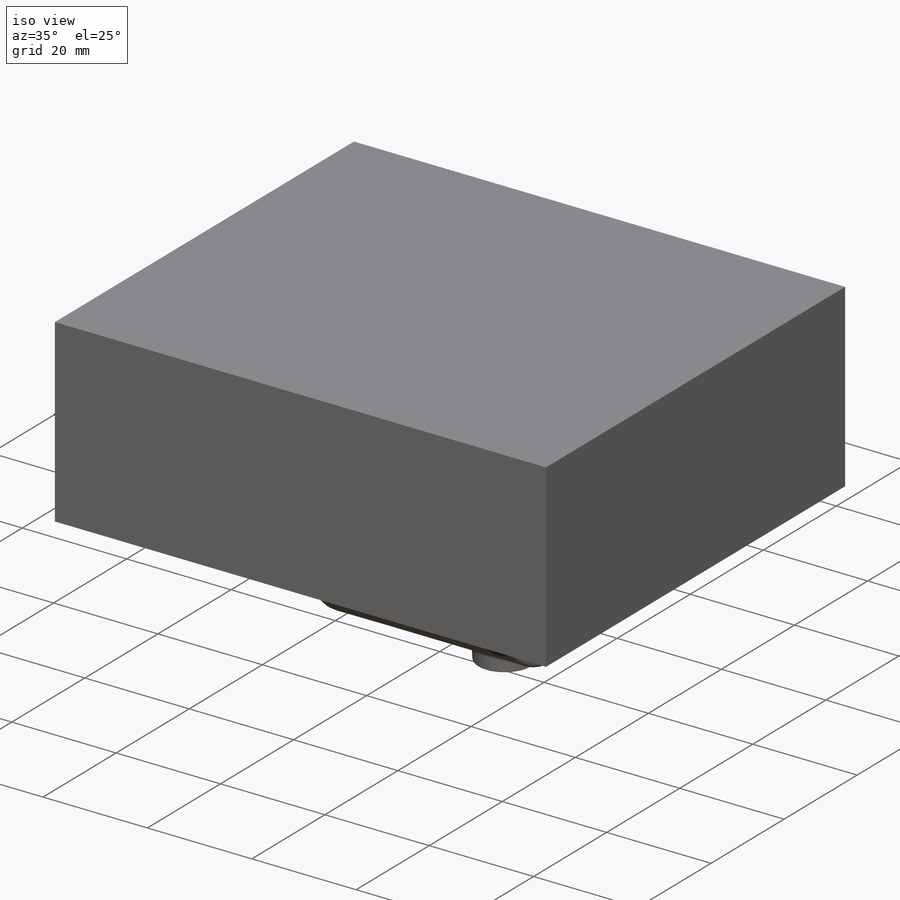
[diagram: iso view]
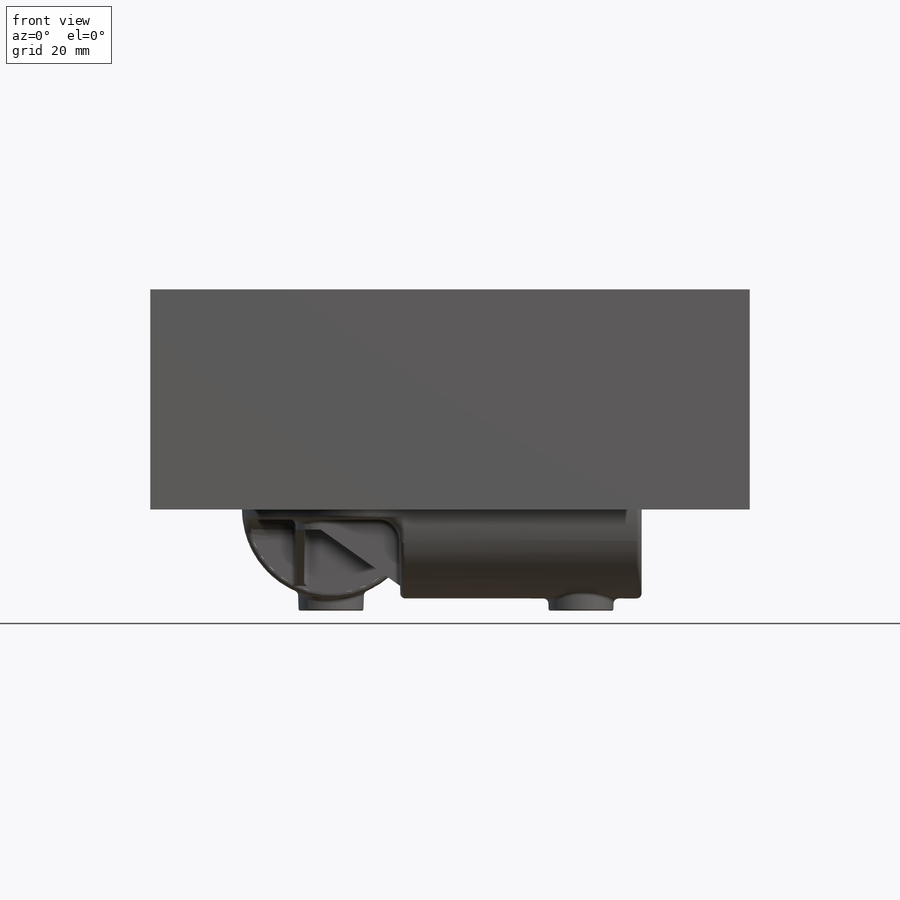
[diagram: front view]
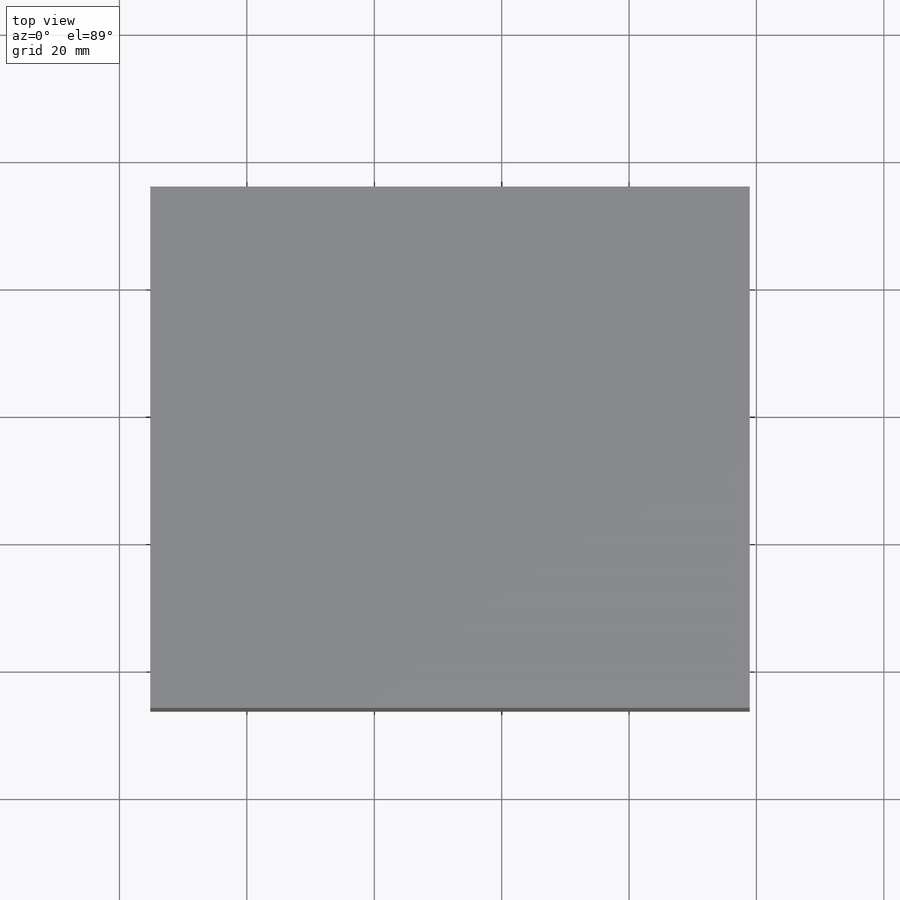
[diagram: top view]
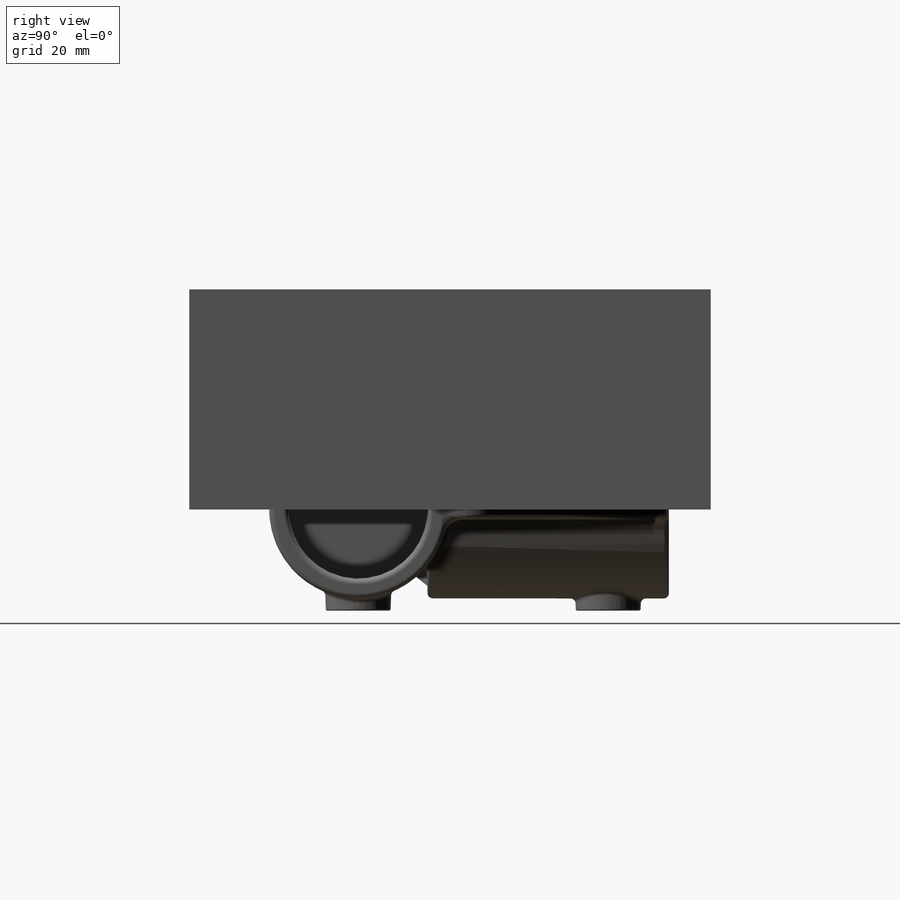
[diagram: right view]
SOLIDWORKS PART (.sldprt)
format: sldprt  version: not decoded by parser v0  size: 4,369,408 bytes
history: native  units: mm
features: sketch x25, cut_extrude x13, extrude x9, fillet x8, sweep x6, plane x4, boolean_combine x2, material x1, mirror x1, move_body x1 (+12 scaffold rows collapsed)
feature tree (82):
  scaffold x12  (default folders/planes/origin — collapsed)
  material  "PC High Viscosity"
  plane  "Plane1"  Offset=13.208mm
  plane  "TOP OF BOSSES"  Offset=15.875mm
  sketch  "Sketch1"  dims[c1.D1=~24.208845mm c2.D1=27.94mm]
  extrude  "Boss-Extrude1"  Depth=38.1mm
  sketch  "Sketch3"  dims[c1.D2=27.94mm c1.D1=18.1864mm c2.D1=~14.50728mm c3.D1=12.7mm]
  extrude  "Boss-Extrude2"  Depth=38.1mm
  sketch  "Sketch2"  dims[D1=21.59mm]
  cut_extrude  "Cut-Extrude1"  Depth=2.032mm
  sketch  "Sketch4"  dims[D1=21.59mm D2=10.8712mm]
  cut_extrude  "Cut-Extrude2"  Depth=2.032mm
  sketch  "Sketch10"  dims[c1.D1=3.175mm c1.D2=3.175mm c1.D3=~3.468409mm c2.D1=~3.508508mm c2.D3=15.748mm c2.D2=8.89mm c3.D3=8.89mm c3.D1=~3.936149mm c4.D1=~6.936817mm c4.D2=7.9248mm c5.D1=9.525mm c5.D2=4.826mm c5.D4=~2.869096mm c6.D4=45.0deg c6.D3=8.636mm]
  extrude  "Boss-Extrude7"  Depth=3.175mm
  sketch  "Sketch24"
  sketch  "Sketch25"
  sweep  "Cut-Sweep1"
  sweep  "Draft8"
  plane  "Plane3"  Offset=3.175mm
  sketch  "Sketch19"  dims[D1=1.524mm D2=0.0mm D3=0.127mm]
  extrude  "Boss-Extrude8"  Depth=6.35mm
  sweep  "Draft9"
  sweep  "Draft10"
  sketch  "Sketch12"  dims[c1.D2=6.35mm c1.D1=16.51mm c2.D2=16.51mm c2.D3=~28.300742mm c2.D1=~1.547037mm c3.D1=1.524mm c3.D3=6.35mm c3.D4=36.957mm c4.D4=45.0deg c4.D3=12.319mm c4.D5=~3.719744mm]
  extrude  "Boss-Extrude5"  Depth=3.175mm
  sketch  "Sketch13"  dims[c1.D1=10.16mm c1.D2=0.508mm c1.D3=~1.719174mm c2.D3=2.54mm c2.D4=9.525mm c2.D5=9.525mm c2.D2=1.778mm c3.D3=1.778mm]
  extrude  "Boss-Extrude6"  [1 undecoded]
  plane  "Plane2"
  sweep  "Draft5"
  sweep  "Draft6"
  sketch  "Sketch17"  dims[D1=4.826mm]
  cut_extrude  "Cut-Extrude9"  [1 undecoded]
  fillet  "Fillet9"  Radius=0.254mm
  fillet  "Fillet10"  Radius=12.7mm
  sketch  "Sketch20"  dims[c1.D1=~0.455366mm c1.D2=~0.505806mm c1.D3=~2.414108mm c1.D4=~2.414108mm c2.D1=0.0mm]
  extrude  "Boss-Extrude9"  Depth=10.414mm
  sketch  "Sketch22"  dims[D1=~0.377076mm D2=~1.651382mm]
  cut_extrude  "Cut-Extrude12"  [1 undecoded]
  sketch  "Sketch28"  dims[D1=0.0mm]
  cut_extrude  "Cut-Extrude13"  [1 undecoded]
  mirror  "Mirror3"
  fillet  "Fillet46"  Radius=0.8128mm
  fillet  "Fillet47"  Radius=0.8128mm
  fillet  "Fillet48"  Radius=0.8128mm
  fillet  "Fillet49"  Radius=3.175mm
  fillet  "Fillet52"  Radius=0.8128mm
  fillet  "Fillet53"  Radius=0.8128mm
  sketch  "Sketch30"
  move_body  "Body-Move/Copy1"
  sketch  "Sketch35"
  extrude  "Boss-Extrude10"  Depth=34.544mm
  boolean_combine  "Combine1"
  sketch  "Sketch36"
  cut_extrude  "Cut-Extrude14"  Depth=34.544mm
  sketch  "Sketch37"
  cut_extrude  "Cut-Extrude15"  Depth=34.544mm
  sketch  "Sketch38"  dims[D1=0.0mm]
  cut_extrude  "Cut-Extrude16"  [1 undecoded]
  sketch  "Sketch39"
  extrude  "Boss-Extrude11"  Depth=34.544mm
  boolean_combine  "Combine2"
  sketch  "Sketch41"  dims[D1=0.0mm]
  cut_extrude  "Cut-Extrude20"  Depth=4.064mm
  sketch  "Sketch42"  dims[D1=0.0mm]
  cut_extrude  "Cut-Extrude21"  Depth=4.064mm
  sketch  "Sketch40"
  cut_extrude  "Cut-Extrude23"  Depth=4.064mm
  sketch  "Sketch43"  dims[D1=0.0mm]
  cut_extrude  "Cut-Extrude24"  Depth=4.064mm
  sketch  "Sketch44"  dims[D1=0.0mm D2=0.254mm]
  cut_extrude  "Cut-Extrude26"  [1 undecoded]
decode coverage: 41 of 65 modeling features carry decoded parameters
note: ~ marks probable driven/reference dimensions
note: 6 parameter values undecoded
summary: no parameter record found for 6 features; profile_refs inferred from adjacent sketches, not decoded
note: suppression state not decoded; provenance and decode notes live in map.json
